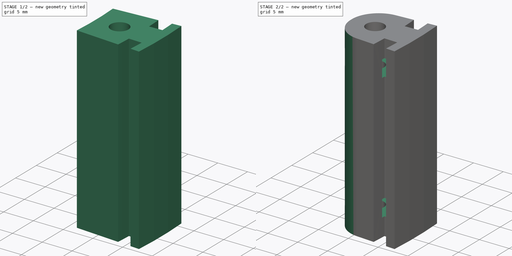
[diagram: build sequence overview — one tinted view per stage of 2, left to right]
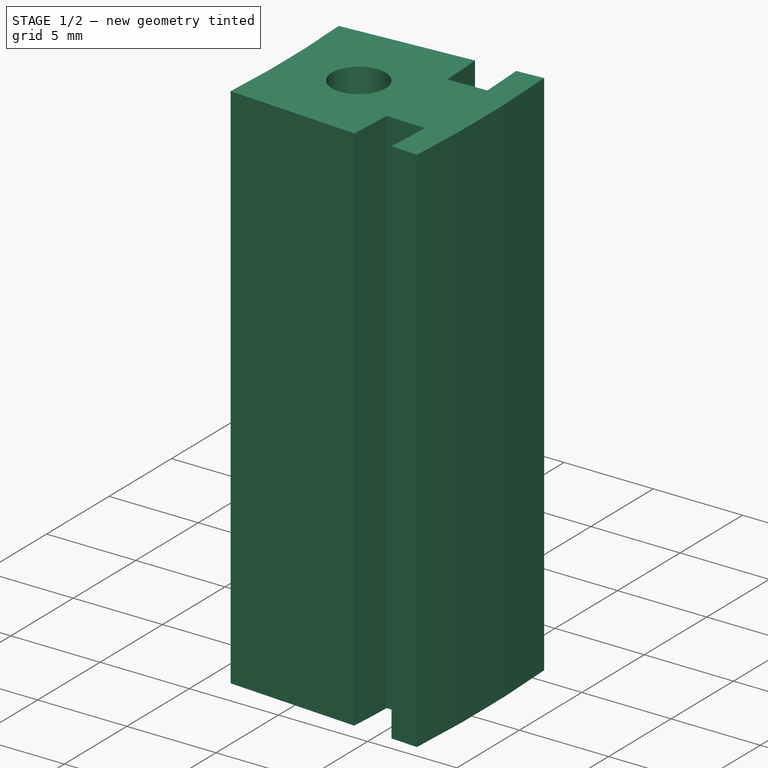
[diagram: stage 1 of 2 — iso view after this stage's code; geometry added in this stage tinted green]
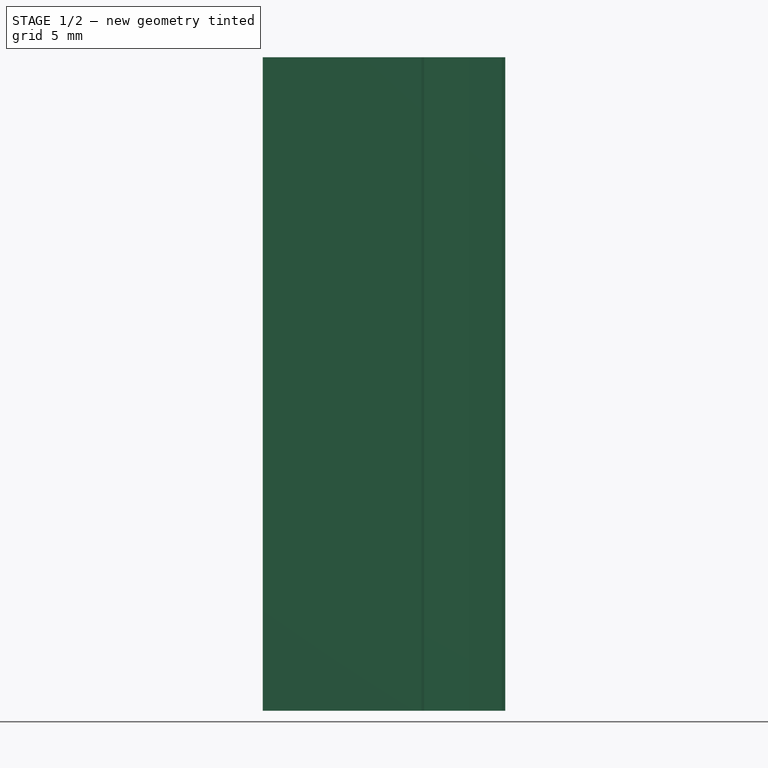
[diagram: stage 1 of 2 — front view after this stage's code; geometry added in this stage tinted green]
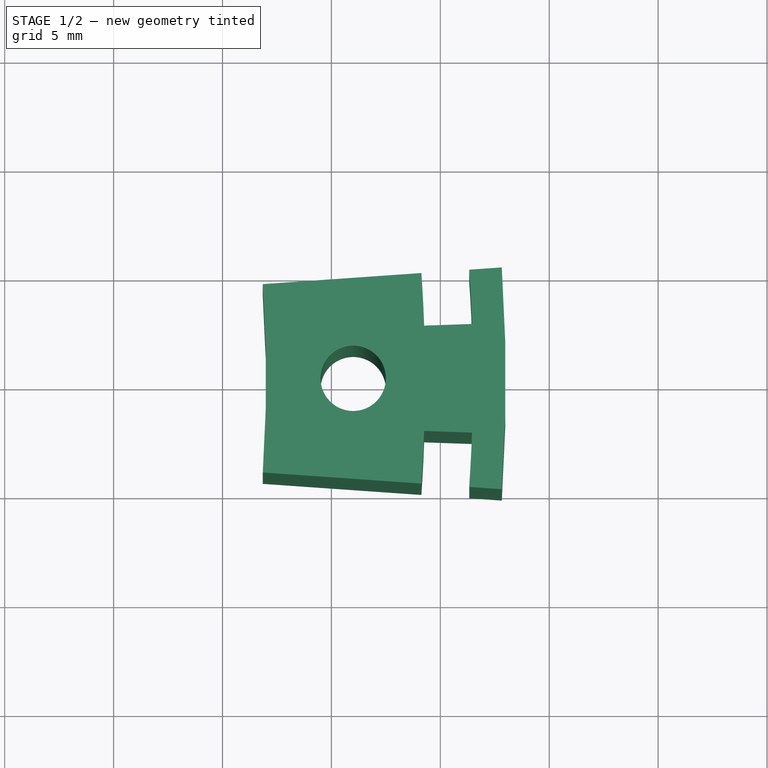
[diagram: stage 1 of 2 — top view after this stage's code; geometry added in this stage tinted green]
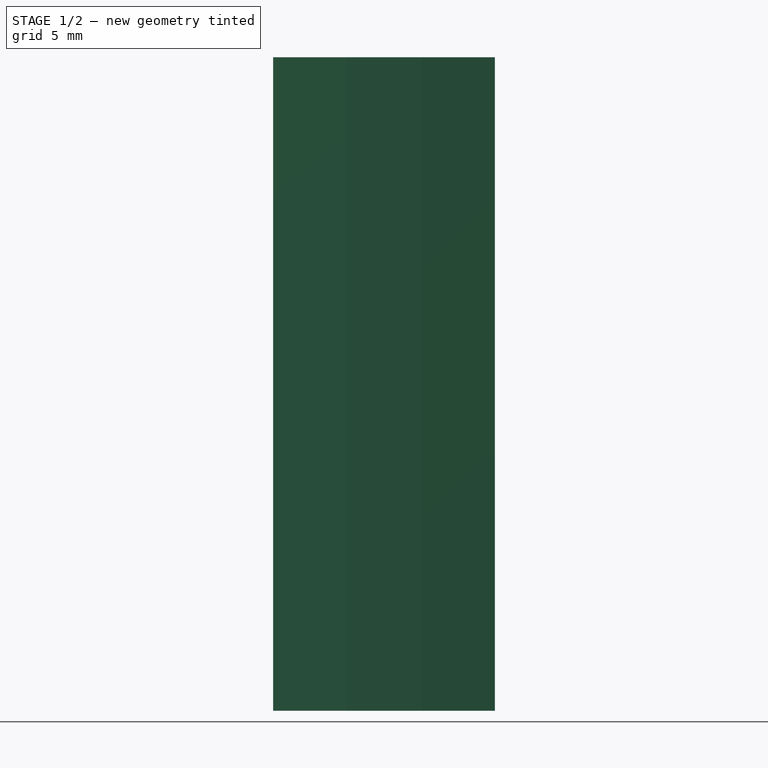
[diagram: stage 1 of 2 — right view after this stage's code; geometry added in this stage tinted green]
FCSTD DOCUMENT  (FreeCAD 0.17R13541 (Git))
Label: AB_plate-standoff
License: All rights reserved
LicenseURL: http://en.wikipedia.org/wiki/All_rights_reserved
objects: Sketcher::SketchObject×3, PartDesign::Pocket×2, PartDesign::Pad×1, PartDesign::Fillet×1, PartDesign::Body×1
note: 11 computed .brp shape members not serialized (recipe doc carries the construction recipe); baked Part::Feature solids carry a one-line shape summary decoded from their .brp

FEATURE [Sketcher::SketchObject] Sketch
  MapMode = 5
  Support = -> [XY_Plane]
  sketch-geometry (6):
    g0: Circle CenterX=66 CenterY=0 CenterZ=0 NormalX=0 NormalY=0 NormalZ=1 AngleXU=0 Radius=1.5
    g1: LineSegment StartX=61.849 StartY=4.3249 StartZ=0 EndX=72.8222 EndY=5.09222 EndZ=0
    g2: LineSegment StartX=72.8222 StartY=-5.09222 StartZ=0 EndX=61.849 EndY=-4.3249 EndZ=0
    g3: ArcOfCircle CenterX=0 CenterY=0 CenterZ=0 NormalX=0 NormalY=0 NormalZ=1 AngleXU=0 Radius=73 StartAngle=6.21337 EndAngle=6.353
    g4: LineSegment [constr] StartX=0 StartY=0 StartZ=0 EndX=72.8222 EndY=5.09222 EndZ=0
    g5: ArcOfCircle CenterX=0 CenterY=0 CenterZ=0 NormalX=0 NormalY=0 NormalZ=1 AngleXU=0 Radius=62 StartAngle=6.21337 EndAngle=6.353
  constraints (17):
    c: PointOnObject(g0,g-1)
    c: Radius(g0) = 1.5
    c: DistanceX(g-1,g0) = 66
    c: Symmetric(g2,g1,g-1)
    c: Symmetric(g1,g2,g-1)
    c: Coincident(g3,g-1)
    c: Coincident(g3,g1)
    c: Coincident(g3,g2)
    c: Radius(g3) = 73
    c: Coincident(g4,g-1)
    c: Coincident(g4,g1)
    c: PointOnObject(g1,g4)
    c: Coincident(g5,g-1)
    c: Coincident(g5,g1)
    c: Coincident(g5,g2)
    c: Radius(g5) = 62
    c: Angle(g-1,g4) = 0.0698132
FEATURE [PartDesign::Pad] Pad
  Length = 30
  Length2 = 100
  Profile = -> Sketch
  Type = 0
FEATURE [Sketcher::SketchObject] Sketch001
  MapMode = 5
  Placement = pos=(0,0,30) rot=(0,0,1;0rad)
  Support = -> [Pad]
  sketch-geometry (12):
    g0: ArcOfCircle CenterX=0 CenterY=0 CenterZ=0 NormalX=0 NormalY=0 NormalZ=1 AngleXU=0 Radius=71.5 StartAngle=6.21337 EndAngle=6.24828
    g1: ArcOfCircle CenterX=0 CenterY=0 CenterZ=0 NormalX=0 NormalY=0 NormalZ=1 AngleXU=0 Radius=69.3 StartAngle=6.21337 EndAngle=6.24828
    g2: LineSegment StartX=69.2578 StartY=2.41854 StartZ=0 EndX=71.4564 EndY=2.49531 EndZ=0
    g3: LineSegment StartX=69.2578 StartY=-2.41854 StartZ=0 EndX=71.4564 EndY=-2.49531 EndZ=0
    g4: LineSegment StartX=69.1312 StartY=4.83412 StartZ=0 EndX=71.3258 EndY=4.98759 EndZ=0
    g5: LineSegment StartX=69.1312 StartY=-4.83412 StartZ=0 EndX=71.3258 EndY=-4.98759 EndZ=0
    g6: ArcOfCircle CenterX=0 CenterY=0 CenterZ=0 NormalX=0 NormalY=0 NormalZ=1 AngleXU=0 Radius=69.3 StartAngle=0.0349066 EndAngle=0.0698132
    g7: ArcOfCircle CenterX=0 CenterY=0 CenterZ=0 NormalX=0 NormalY=0 NormalZ=1 AngleXU=0 Radius=71.5 StartAngle=0.0349066 EndAngle=0.0698132
    g8: LineSegment [constr] StartX=0 StartY=0 StartZ=0 EndX=69.1312 EndY=4.83412 EndZ=0
    g9: LineSegment [constr] StartX=0 StartY=0 StartZ=0 EndX=69.2578 EndY=2.41854 EndZ=0
    g10: LineSegment [constr] StartX=0 StartY=0 StartZ=0 EndX=69.2578 EndY=-2.41854 EndZ=0
    g11: LineSegment [constr] StartX=0 StartY=0 StartZ=0 EndX=69.1312 EndY=-4.83412 EndZ=0
  constraints (35):
    c: Coincident(g0,g-1)
    c: Coincident(g1,g-1)
    c: Radius(g0) = 71.5
    c: Radius(g1) = 69.3
    c: Coincident(g1,g5)
    c: Coincident(g6,g4)
    c: Coincident(g0,g5)
    c: Coincident(g7,g4)
    c: Equal(g1,g6)
    c: Coincident(g1,g3)
    c: Coincident(g6,g2)
    c: Coincident(g1,g6)
    c: Equal(g0,g7)
    c: Coincident(g0,g3)
    c: Coincident(g7,g2)
    c: Coincident(g0,g7)
    c: Coincident(g8,g-1)
    c: Coincident(g8,g4)
    c: Coincident(g9,g-1)
    c: Coincident(g9,g2)
    c: Coincident(g10,g-1)
    c: Coincident(g10,g1)
    c: Coincident(g11,g-1)
    c: Coincident(g11,g1)
    c: Equal(g8,g9)
    c: Equal(g9,g10)
    c: Equal(g10,g11)
    c: PointOnObject(g2,g9)
    c: PointOnObject(g0,g10)
    c: PointOnObject(g0,g11)
    c: PointOnObject(g4,g8)
    c: Angle(g10,g9) = 0.0698132
    c: Angle(g-1,g9) = 0.0349066
    c: Angle(g11,g8) = 0.139626
    c: Angle(g11,g-1) = 0.0698132
FEATURE [PartDesign::Pocket] Pocket
  BaseFeature = -> Pad
  Length = 5
  Length2 = 100
  Profile = -> Sketch001
  Type = 1
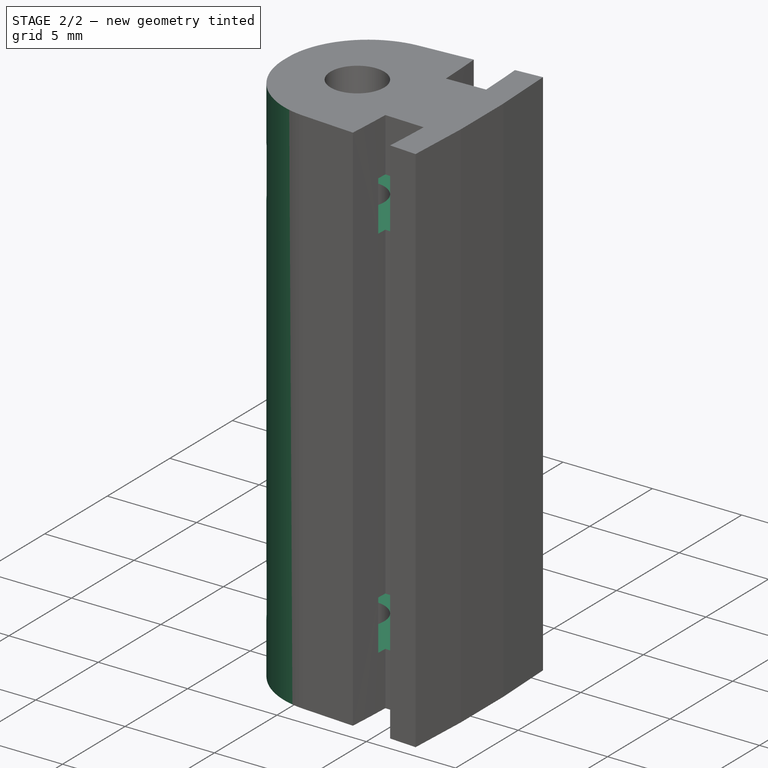
[diagram: stage 2 of 2 — iso view after this stage's code; geometry added in this stage tinted green]
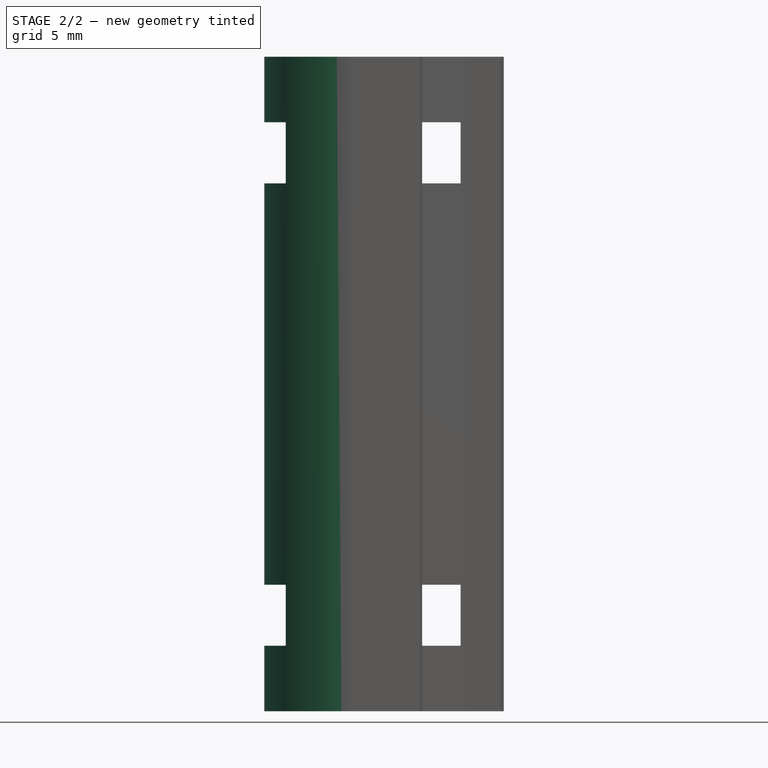
[diagram: stage 2 of 2 — front view after this stage's code; geometry added in this stage tinted green]
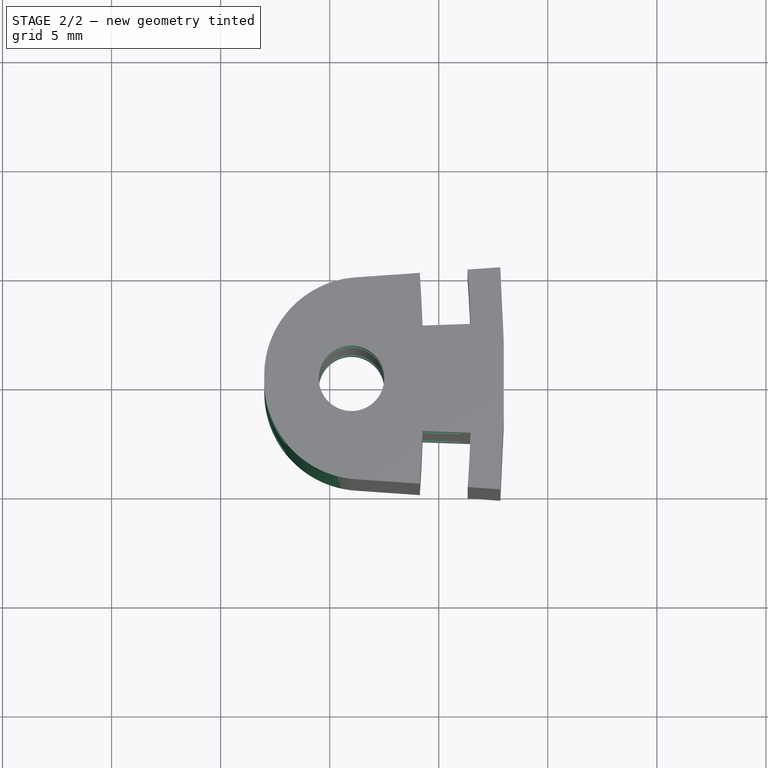
[diagram: stage 2 of 2 — top view after this stage's code; geometry added in this stage tinted green]
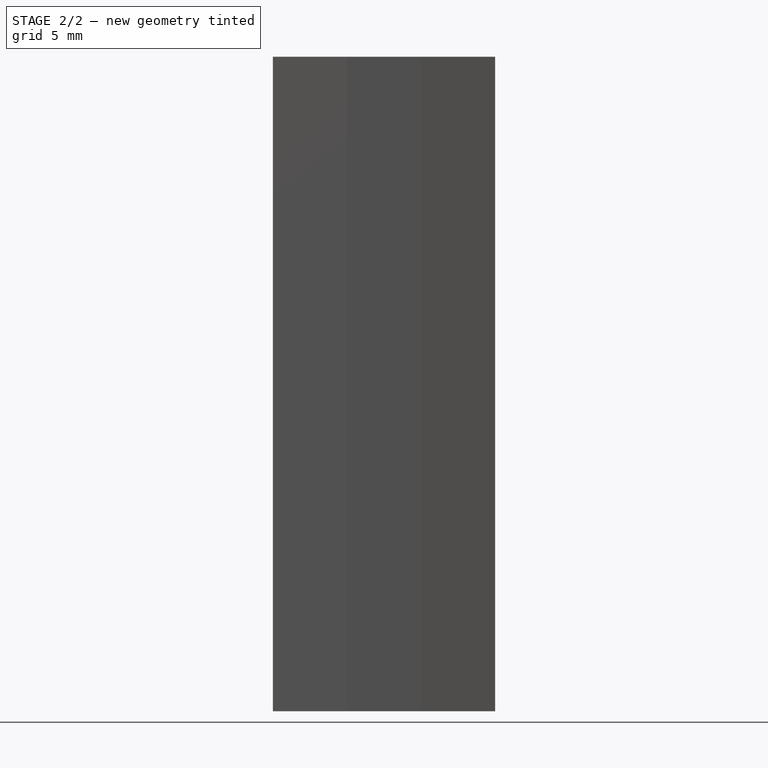
[diagram: stage 2 of 2 — right view after this stage's code; geometry added in this stage tinted green]
FEATURE [PartDesign::Fillet] Fillet
  Base = -> Pocket [Edge4,Edge30]
  BaseFeature = -> Pocket
  Radius = 4.5
FEATURE [Sketcher::SketchObject] Sketch002
  MapMode = 5
  Placement = pos=(0,0,0) rot=(0.57735,0.57735,0.57735;2.0944rad)
  Support = -> [YZ_Plane]
  sketch-geometry (8):
    g0: LineSegment StartX=-2.95 StartY=24.2 StartZ=0 EndX=2.95 EndY=24.2 EndZ=0
    g1: LineSegment StartX=2.95 StartY=24.2 StartZ=0 EndX=2.95 EndY=27 EndZ=0
    g2: LineSegment StartX=2.95 StartY=27 StartZ=0 EndX=-2.95 EndY=27 EndZ=0
    g3: LineSegment StartX=-2.95 StartY=27 StartZ=0 EndX=-2.95 EndY=24.2 EndZ=0
    g4: LineSegment StartX=-2.95 StartY=3 StartZ=0 EndX=2.95 EndY=3 EndZ=0
    g5: LineSegment StartX=2.95 StartY=3 StartZ=0 EndX=2.95 EndY=5.8 EndZ=0
    g6: LineSegment StartX=2.95 StartY=5.8 StartZ=0 EndX=-2.95 EndY=5.8 EndZ=0
    g7: LineSegment StartX=-2.95 StartY=5.8 StartZ=0 EndX=-2.95 EndY=3 EndZ=0
  constraints (24):
    c: Coincident(g0,g1)
    c: Coincident(g1,g2)
    c: Coincident(g2,g3)
    c: Coincident(g3,g0)
    c: Horizontal(g0)
    c: Horizontal(g2)
    c: Vertical(g1)
    c: Vertical(g3)
    c: DistanceX(g2,g2) = 5.9
    c: DistanceY(g3,g3) = 2.8
    c: Coincident(g4,g5)
    c: Coincident(g5,g6)
    c: Coincident(g6,g7)
    c: Coincident(g7,g4)
    c: Horizontal(g4)
    c: Horizontal(g6)
    c: Vertical(g5)
    c: Vertical(g7)
    c: Equal(g2,g6) = 6
    c: Equal(g3,g7) = 3
    c: Symmetric(g4,g4,g-2)
    c: PointOnObject(g5,g1)
    c: DistanceY(g4) = 3
    c: DistanceY(g1) = 27
FEATURE [PartDesign::Pocket] Pocket001
  BaseFeature = -> Fillet
  Length = 71
  Length2 = 100
  Profile = -> Sketch002
  Reversed = true
  Type = 0
FEATURE [PartDesign::Body] Body
  Group = -> [Sketch,Pad,Sketch001,Pocket,Fillet,Sketch002,Pocket001]
  Origin = -> Origin
  Tip = -> Pocket001
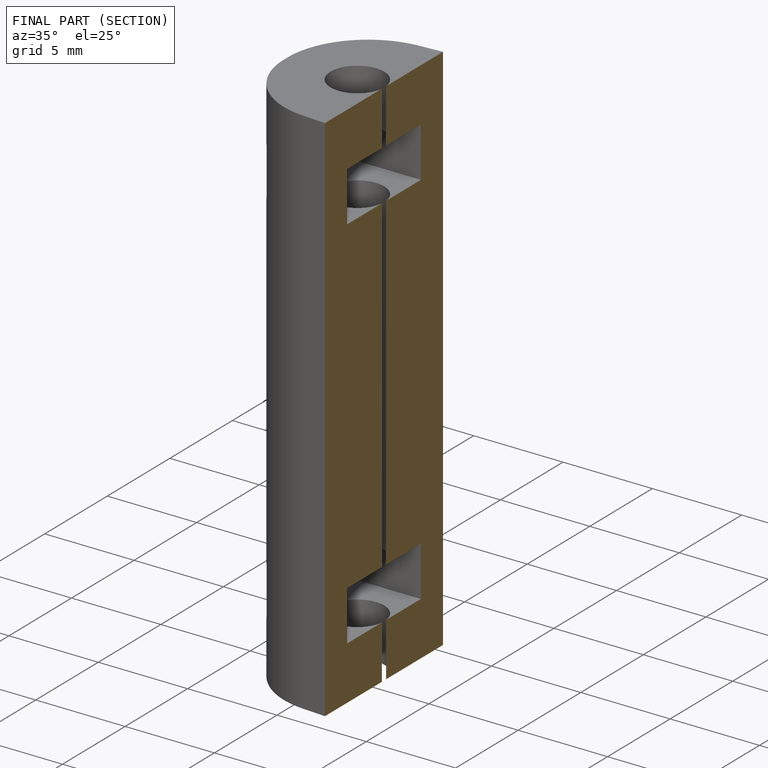
[diagram: finished part — half-section view (interior)]
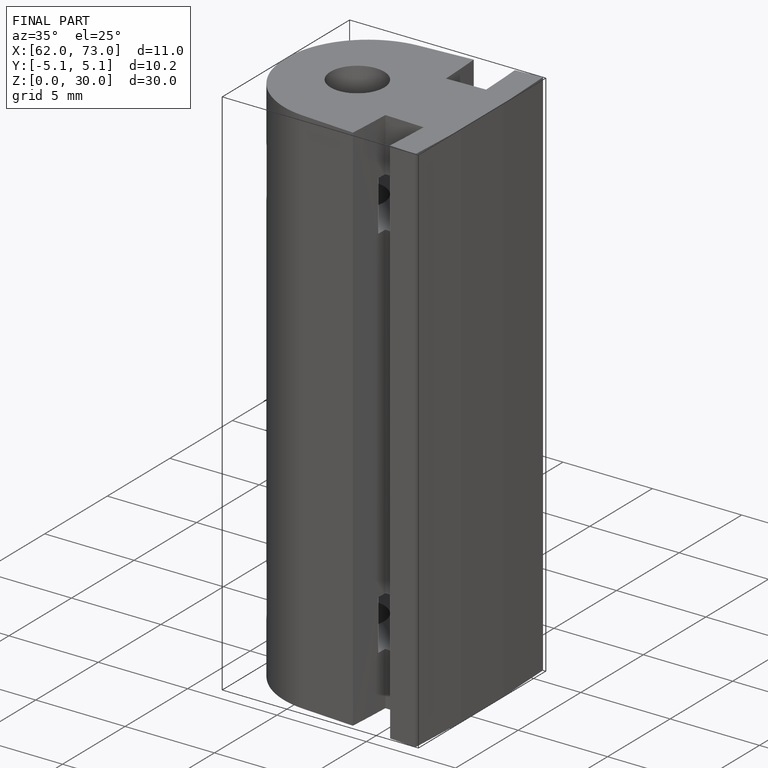
[diagram: finished part — iso view with bounding-box wireframe]
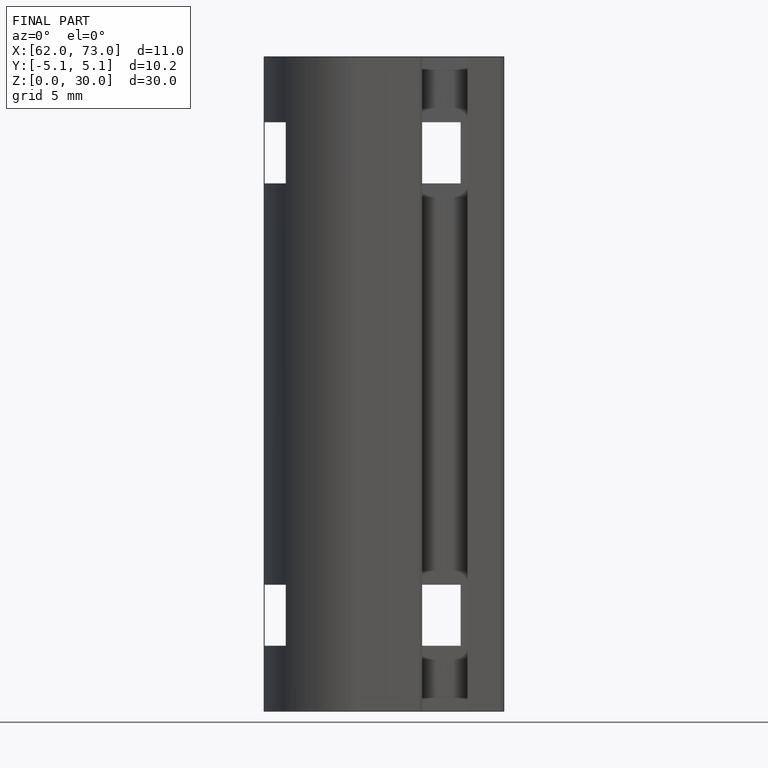
[diagram: finished part — front view with bounding-box wireframe]
